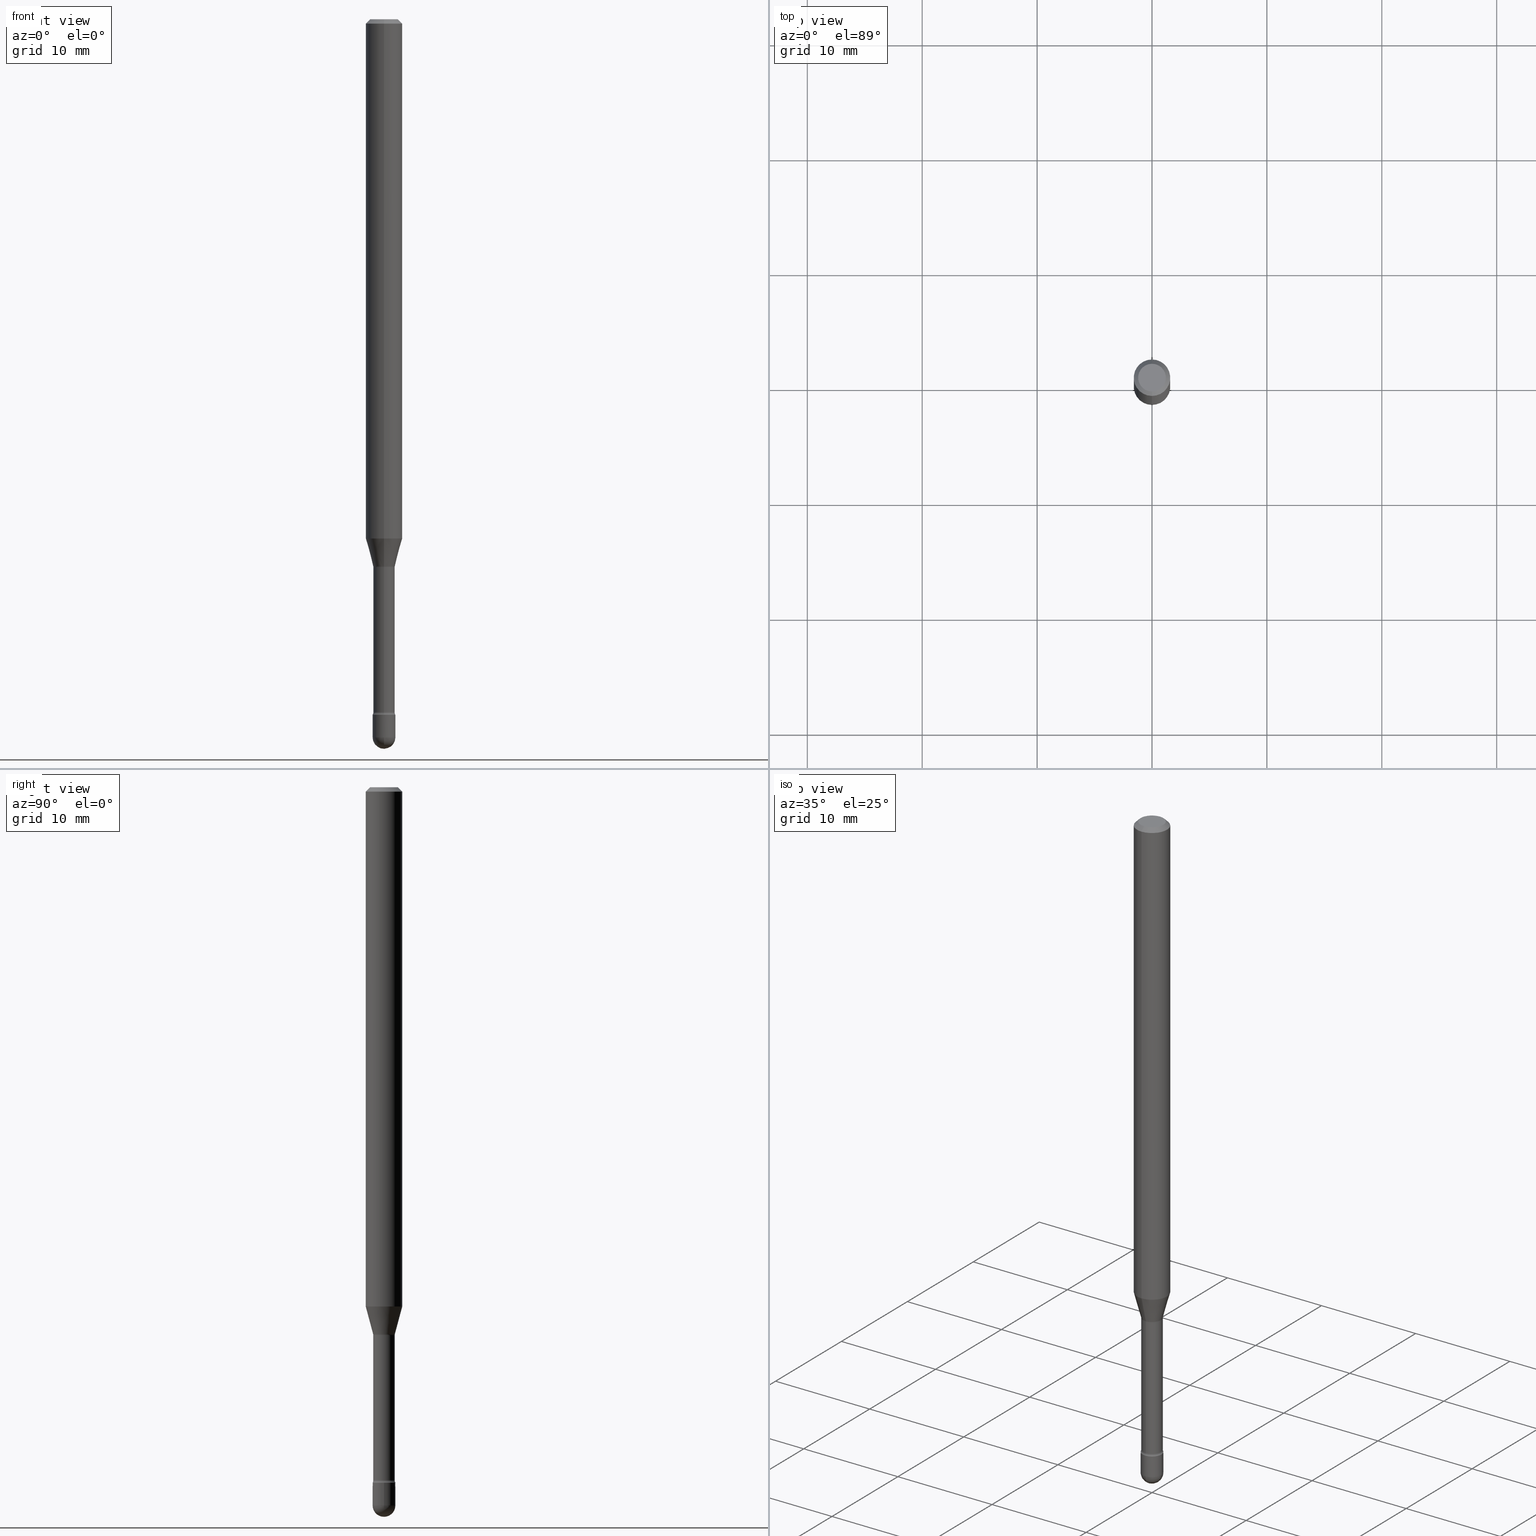
[diagram: canonical four-view strip — front | top / right | iso, engineering-drawing reading convention]
A machine part, canonical four-view strip (front | top / right | iso — engineering-drawing reading convention). The complete STEP part file that produces these views, byte-faithful:
ISO-10303-21;
HEADER;
FILE_DESCRIPTION (( 'STEP AP203' ),
    '1' );
FILE_NAME ('03876.STEP',
    '2024-04-09T20:53:55',
    ( '' ),
    ( '' ),
    'SwSTEP 2.0',
    'SolidWorks 2023',
    '' );
FILE_SCHEMA (( 'CONFIG_CONTROL_DESIGN' ));
ENDSEC;

DATA;
#1 = CIRCLE ( 'NONE', #311, 0.01500000000000001853 ) ;
#2 = CIRCLE ( 'NONE', #470, 0.04749999999999999362 ) ;
#3 = FACE_OUTER_BOUND ( 'NONE', #330, .T. ) ;
#4 = LOCAL_TIME ( 16, 53, 55.00000000000000000, #322 ) ;
#5 = FACE_OUTER_BOUND ( 'NONE', #262, .T. ) ;
#6 = PLANE ( 'NONE',  #140 ) ;
#7 = DIRECTION ( 'NONE',  ( -2.445432227505668971E-29, 3.491533721594072411E-15, 1.000000000000000000 ) ) ;
#8 = EDGE_CURVE ( 'NONE', #102, #549, #1, .T. ) ;
#9 = LINE ( 'NONE', #546, #360 ) ;
#10 = DIRECTION ( 'NONE',  ( -2.445468806185136597E-29, 3.491481338843145583E-15, 1.000000000000000000 ) ) ;
#11 = DIRECTION ( 'NONE',  ( -2.445432227505668971E-29, 3.491533721594072411E-15, 1.000000000000000000 ) ) ;
#12 = FACE_OUTER_BOUND ( 'NONE', #547, .T. ) ;
#13 = ORIENTED_EDGE ( 'NONE', *, *, #423, .T. ) ;
#14 = FACE_OUTER_BOUND ( 'NONE', #337, .T. ) ;
#15 = AXIS2_PLACEMENT_3D ( 'NONE', #545, #24, #552 ) ;
#16 = EDGE_CURVE ( 'NONE', #313, #247, #386, .T. ) ;
#17 = DIRECTION ( 'NONE',  ( -6.982962677686265922E-15, -1.000000000000000000, 0.000000000000000000 ) ) ;
#18 = ORIENTED_EDGE ( 'NONE', *, *, #180, .F. ) ;
#19 = VERTEX_POINT ( 'NONE', #241 ) ;
#20 = CARTESIAN_POINT ( 'NONE',  ( 3.668148341258523687E-31, -5.237300582391137805E-17, -0.01500000000000008271 ) ) ;
#21 = APPROVAL_DATE_TIME ( #63, #57 ) ;
#22 = VECTOR ( 'NONE', #317, 39.37007874015748143 ) ;
#23 = LOCAL_TIME ( 16, 53, 55.00000000000000000, #416 ) ;
#24 = DIRECTION ( 'NONE',  ( -1.000000000000000000, 6.982962677686265922E-15, -4.883557194083112340E-29 ) ) ;
#25 = EDGE_CURVE ( 'NONE', #143, #313, #507, .T. ) ;
#26 = DIRECTION ( 'NONE',  ( -6.982962677686267499E-15, -1.000000000000000000, 0.000000000000000000 ) ) ;
#27 = PERSON_AND_ORGANIZATION ( #292, #353 ) ;
#28 = DIRECTION ( 'NONE',  ( 1.000000000000000000, -6.982962677686282488E-15, 0.000000000000000000 ) ) ;
#29 = EDGE_LOOP ( 'NONE', ( #396, #151, #454, #400 ) ) ;
#30 = EDGE_CURVE ( 'NONE', #532, #265, #464, .T. ) ;
#31 = APPROVAL_STATUS ( 'not_yet_approved' ) ;
#32 = DIRECTION ( 'NONE',  ( -2.445468806185136597E-29, 3.491481338843145583E-15, 1.000000000000000000 ) ) ;
#33 = AXIS2_PLACEMENT_3D ( 'NONE', #459, #115, #461 ) ;
#34 = ADVANCED_FACE ( 'NONE', ( #367 ), #406, .T. ) ;
#35 = DATE_AND_TIME ( #246, #23 ) ;
#36 = PRODUCT_DEFINITION_FORMATION_WITH_SPECIFIED_SOURCE ( 'ANY', '', #273, .NOT_KNOWN. ) ;
#37 = CARTESIAN_POINT ( 'NONE',  ( 6.018298732021620914E-29, -8.592535574892981353E-15, -2.460999999999999854 ) ) ;
#38 = VERTEX_POINT ( 'NONE', #475 ) ;
#39 = ORIENTED_EDGE ( 'NONE', *, *, #267, .F. ) ;
#40 = AXIS2_PLACEMENT_3D ( 'NONE', #61, #493, #402 ) ;
#41 = PLANE ( 'NONE',  #269 ) ;
#42 = CIRCLE ( 'NONE', #369, 0.03899999999999999994 ) ;
#43 = ORIENTED_EDGE ( 'NONE', *, *, #103, .T. ) ;
#44 = CARTESIAN_POINT ( 'NONE',  ( -4.364351673553912750E-16, -0.06250000000000005551, -0.01499999999999986587 ) ) ;
#45 = VERTEX_POINT ( 'NONE', #217 ) ;
#46 = CARTESIAN_POINT ( 'NONE',  ( 0.03899999999999999994, -2.723355444297643682E-16, 1.901708942560414931E-30 ) ) ;
#47 = EDGE_CURVE ( 'NONE', #227, #247, #171, .T. ) ;
#48 = AXIS2_PLACEMENT_3D ( 'NONE', #266, #356, #17 ) ;
#49 = FACE_OUTER_BOUND ( 'NONE', #431, .T. ) ;
#50 = LOCAL_TIME ( 16, 53, 55.00000000000000000, #512 ) ;
#51 = CARTESIAN_POINT ( 'NONE',  ( 4.582966201197323306E-29, -6.543457167376863693E-15, -1.874092501787273157 ) ) ;
#52 = DIRECTION ( 'NONE',  ( -6.982962677686265922E-15, -1.000000000000000000, 3.491533721594072411E-15 ) ) ;
#53 = CARTESIAN_POINT ( 'NONE',  ( 2.604139126561350589E-16, 0.03664999999999345864, -1.877974787463811079 ) ) ;
#54 = ORIENTED_EDGE ( 'NONE', *, *, #83, .F. ) ;
#55 = DIRECTION ( 'NONE',  ( -2.445432227505668971E-29, 3.491533721594072411E-15, 1.000000000000000000 ) ) ;
#56 = CARTESIAN_POINT ( 'NONE',  ( -1.169113584055446105E-44, 1.669184350826100908E-30, 4.780733988912460139E-16 ) ) ;
#57 = APPROVAL ( #152, 'UNSPECIFIED' ) ;
#58 = ORIENTED_EDGE ( 'NONE', *, *, #155, .T. ) ;
#59 = CARTESIAN_POINT ( 'NONE',  ( -2.723355444297061897E-16, -0.03900000000000832662, -2.383000000000000451 ) ) ;
#60 = CIRCLE ( 'NONE', #560, 0.06250000000000000000 ) ;
#61 = CARTESIAN_POINT ( 'NONE',  ( 5.827464998146010036E-29, -8.320324858558674794E-15, -2.383000000000000451 ) ) ;
#62 = ADVANCED_FACE ( 'NONE', ( #5 ), #175, .T. ) ;
#63 = DATE_AND_TIME ( #237, #437 ) ;
#64 = CARTESIAN_POINT ( 'NONE',  ( 3.669953230201501814E-16, 0.05164999999999177888, -2.374939137763242059 ) ) ;
#65 = EDGE_CURVE ( 'NONE', #421, #102, #559, .T. ) ;
#66 = CARTESIAN_POINT ( 'NONE',  ( 3.840629472727447874E-16, 0.04749999999999999362, -2.485923956665947374E-16 ) ) ;
#67 = AXIS2_PLACEMENT_3D ( 'NONE', #150, #393, #489 ) ;
#68 = ORIENTED_EDGE ( 'NONE', *, *, #458, .F. ) ;
#69 = AXIS2_PLACEMENT_3D ( 'NONE', #250, #297, #425 ) ;
#70 = DIRECTION ( 'NONE',  ( 1.000000000000000000, -7.105427357601001070E-15, 4.926316150045764612E-29 ) ) ;
#71 = DIRECTION ( 'NONE',  ( -6.982962677686266711E-15, -1.000000000000000000, 0.000000000000000000 ) ) ;
#72 = EDGE_CURVE ( 'NONE', #19, #549, #328, .T. ) ;
#73 = DIRECTION ( 'NONE',  ( -2.445432227505668971E-29, 3.491533721594072411E-15, 1.000000000000000000 ) ) ;
#74 = TOROIDAL_SURFACE ( 'NONE', #221, 0.05165000000000006392, 0.01500000000000001853 ) ;
#75 =( NAMED_UNIT ( * ) SI_UNIT ( $, .STERADIAN. ) SOLID_ANGLE_UNIT ( ) );
#76 = CARTESIAN_POINT ( 'NONE',  ( 0.000000000000000000, 0.000000000000000000, 0.000000000000000000 ) ) ;
#77 = EDGE_CURVE ( 'NONE', #126, #555, #435, .T. ) ;
#78 = DIRECTION ( 'NONE',  ( -2.445432227505668971E-29, 3.491533721594072411E-15, 1.000000000000000000 ) ) ;
#79 = ORIENTED_EDGE ( 'NONE', *, *, #30, .T. ) ;
#80 = AXIS2_PLACEMENT_3D ( 'NONE', #342, #522, #443 ) ;
#81 = EDGE_LOOP ( 'NONE', ( #92, #43, #310, #184 ) ) ;
#82 = DESIGN_CONTEXT ( 'detailed design', #383, 'design' ) ;
#83 = EDGE_CURVE ( 'NONE', #405, #247, #272, .T. ) ;
#84 = CARTESIAN_POINT ( 'NONE',  ( -0.03900000000000000688, -8.179256135731659234E-15, -2.460999999999999854 ) ) ;
#85 = FACE_OUTER_BOUND ( 'NONE', #81, .T. ) ;
#86 = AXIS2_PLACEMENT_3D ( 'NONE', #298, #390, #52 ) ;
#87 = FACE_OUTER_BOUND ( 'NONE', #117, .T. ) ;
#88 = EDGE_CURVE ( 'NONE', #491, #532, #303, .T. ) ;
#89 = APPROVAL_PERSON_ORGANIZATION ( #179, #57, #448 ) ;
#90 =( LENGTH_UNIT ( ) NAMED_UNIT ( * ) SI_UNIT ( $, .METRE. ) );
#91 = EDGE_CURVE ( 'NONE', #102, #421, #97, .T. ) ;
#92 = ORIENTED_EDGE ( 'NONE', *, *, #514, .F. ) ;
#93 = CARTESIAN_POINT ( 'NONE',  ( 4.592528761544912095E-29, -6.556913925247819438E-15, -1.877974787463811079 ) ) ;
#94 = PERSON_AND_ORGANIZATION_ROLE ( 'classification_officer' ) ;
#95 = ORIENTED_EDGE ( 'NONE', *, *, #267, .T. ) ;
#96 = DATE_AND_TIME ( #492, #445 ) ;
#97 = CIRCLE ( 'NONE', #67, 0.03665000000000004365 ) ;
#98 = CIRCLE ( 'NONE', #429, 0.03716111260566398733 ) ;
#99 = DIRECTION ( 'NONE',  ( -2.445432227505668971E-29, 3.491533721594072411E-15, 1.000000000000000000 ) ) ;
#100 = ORIENTED_EDGE ( 'NONE', *, *, #91, .F. ) ;
#101 = CARTESIAN_POINT ( 'NONE',  ( 4.592460067707113754E-29, -6.557012298733358393E-15, -1.877974787463811079 ) ) ;
#102 = VERTEX_POINT ( 'NONE', #222 ) ;
#103 = EDGE_CURVE ( 'NONE', #38, #126, #182, .T. ) ;
#104 = ORIENTED_EDGE ( 'NONE', *, *, #270, .T. ) ;
#105 = DIRECTION ( 'NONE',  ( 6.982962677686265922E-15, 1.000000000000000000, -3.483106191921935554E-15 ) ) ;
#106 = DIMENSIONAL_EXPONENTS ( 1.000000000000000000, 0.000000000000000000, 0.000000000000000000, 0.000000000000000000, 0.000000000000000000, 0.000000000000000000, 0.000000000000000000 ) ;
#107 = EDGE_LOOP ( 'NONE', ( #58, #533 ) ) ;
#108 = DIRECTION ( 'NONE',  ( -6.982962677686266711E-15, -1.000000000000000000, 3.491533721594072411E-15 ) ) ;
#109 = CIRCLE ( 'NONE', #427, 0.03716111260566398733 ) ;
#110 = CC_DESIGN_SECURITY_CLASSIFICATION ( #339, ( #36 ) ) ;
#111 = EDGE_CURVE ( 'NONE', #375, #313, #302, .T. ) ;
#112 = FACE_OUTER_BOUND ( 'NONE', #430, .T. ) ;
#113 = MANIFOLD_SOLID_BREP ( 'Body-Move/Copy2[2]', #517 ) ;
#114 = PERSON_AND_ORGANIZATION ( #292, #353 ) ;
#115 = DIRECTION ( 'NONE',  ( 1.000000000000000000, -6.982962677686265922E-15, 4.883557194083112340E-29 ) ) ;
#116 = CARTESIAN_POINT ( 'NONE',  ( -4.364351673553484300E-16, -0.06250000000000624500, -1.779526486624344761 ) ) ;
#117 = EDGE_LOOP ( 'NONE', ( #215, #370, #68, #278 ) ) ;
#118 = ORIENTED_EDGE ( 'NONE', *, *, #169, .T. ) ;
#119 = CLOSED_SHELL ( 'NONE', ( #466, #190, #523, #521, #411 ) ) ;
#120 = CIRCLE ( 'NONE', #33, 0.03899999999999989586 ) ;
#121 = CARTESIAN_POINT ( 'NONE',  ( 0.000000000000000000, 0.000000000000000000, 0.000000000000000000 ) ) ;
#122 = AXIS2_PLACEMENT_3D ( 'NONE', #536, #147, #274 ) ;
#123 = ADVANCED_FACE ( 'NONE', ( #260 ), #439, .T. ) ;
#124 = PERSON_AND_ORGANIZATION ( #292, #353 ) ;
#125 = MANIFOLD_SOLID_BREP ( 'Body-Move/Copy2[1]', #119 ) ;
#126 = VERTEX_POINT ( 'NONE', #53 ) ;
#127 = DIRECTION ( 'NONE',  ( -6.982962677686266711E-15, -1.000000000000000000, 0.000000000000000000 ) ) ;
#128 = CARTESIAN_POINT ( 'NONE',  ( 2.723355444298225960E-16, 0.03899999999999167327, -2.383000000000000451 ) ) ;
#129 = EDGE_CURVE ( 'NONE', #549, #19, #469, .T. ) ;
#130 = ORIENTED_EDGE ( 'NONE', *, *, #225, .F. ) ;
#131 = AXIS2_PLACEMENT_3D ( 'NONE', #243, #198, #553 ) ;
#132 = LINE ( 'NONE', #46, #388 ) ;
#133 = CIRCLE ( 'NONE', #494, 0.03899999999999999994 ) ;
#134 = AXIS2_PLACEMENT_3D ( 'NONE', #121, #165, #234 ) ;
#135 = ADVANCED_FACE ( 'NONE', ( #200 ), #257, .T. ) ;
#136 = DIRECTION ( 'NONE',  ( -2.445468806185136597E-29, 3.491481338843145583E-15, 1.000000000000000000 ) ) ;
#137 = DIRECTION ( 'NONE',  ( -2.445432227505668691E-29, 3.491533721594072806E-15, 1.000000000000000000 ) ) ;
#138 = DIRECTION ( 'NONE',  ( 7.105427357601001859E-15, 1.000000000000000000, 0.000000000000000000 ) ) ;
#139 = ORIENTED_EDGE ( 'NONE', *, *, #514, .T. ) ;
#140 = AXIS2_PLACEMENT_3D ( 'NONE', #300, #479, #248 ) ;
#141 = DIRECTION ( 'NONE',  ( -2.445432227505668971E-29, 3.491533721594072411E-15, 1.000000000000000000 ) ) ;
#142 = CARTESIAN_POINT ( 'NONE',  ( 4.592528761544912095E-29, -6.556913925247819438E-15, -1.877974787463811079 ) ) ;
#143 = VERTEX_POINT ( 'NONE', #116 ) ;
#144 = CARTESIAN_POINT ( 'NONE',  ( 0.000000000000000000, 0.000000000000000000, 0.000000000000000000 ) ) ;
#145 = FACE_OUTER_BOUND ( 'NONE', #29, .T. ) ;
#146 = PRODUCT_DEFINITION_SHAPE ( 'NONE', 'NONE',  #535 ) ;
#147 = DIRECTION ( 'NONE',  ( -2.438088387897960049E-29, 3.491481338843145188E-15, 1.000000000000000000 ) ) ;
#148 = EDGE_LOOP ( 'NONE', ( #332, #403, #408, #516 ) ) ;
#149 = AXIS2_PLACEMENT_3D ( 'NONE', #372, #163, #283 ) ;
#150 = CARTESIAN_POINT ( 'NONE',  ( 5.807752705850756836E-29, -8.292180086233907594E-15, -2.374939137763241614 ) ) ;
#151 = ORIENTED_EDGE ( 'NONE', *, *, #277, .F. ) ;
#152 = APPROVAL_STATUS ( 'not_yet_approved' ) ;
#153 = CYLINDRICAL_SURFACE ( 'NONE', #149, 0.03665000000000002978 ) ;
#154 = CARTESIAN_POINT ( 'NONE',  ( -0.03899999999999999994, 2.771116669464390721E-16, -1.918384685199413078E-30 ) ) ;
#155 = EDGE_CURVE ( 'NONE', #227, #375, #2, .T. ) ;
#156 = CARTESIAN_POINT ( 'NONE',  ( 5.827552165139180878E-29, -8.320200030463215753E-15, -2.383000000000000451 ) ) ;
#157 = AXIS2_PLACEMENT_3D ( 'NONE', #93, #7, #474 ) ;
#158 = DIRECTION ( 'NONE',  ( -2.445432227505668691E-29, 3.491533721594072806E-15, 1.000000000000000000 ) ) ;
#159 = EDGE_LOOP ( 'NONE', ( #420, #511, #373, #290 ) ) ;
#160 = CARTESIAN_POINT ( 'NONE',  ( 4.582966201197323306E-29, -6.543457167376863693E-15, -1.874092501787273157 ) ) ;
#161 = PERSON_AND_ORGANIZATION ( #292, #353 ) ;
#162 = PERSON_AND_ORGANIZATION ( #292, #353 ) ;
#163 = DIRECTION ( 'NONE',  ( -2.445432227505668971E-29, 3.491533721594072411E-15, 1.000000000000000000 ) ) ;
#164 = DIRECTION ( 'NONE',  ( -2.445432227505668971E-29, 3.491533721594072411E-15, 1.000000000000000000 ) ) ;
#165 = DIRECTION ( 'NONE',  ( 0.000000000000000000, 0.000000000000000000, 1.000000000000000000 ) ) ;
#166 = VECTOR ( 'NONE', #137, 39.37007874015748143 ) ;
#167 = VERTEX_POINT ( 'NONE', #407 ) ;
#168 = DIRECTION ( 'NONE',  ( -6.982962677686265922E-15, -1.000000000000000000, 3.491533721594072806E-15 ) ) ;
#169 = EDGE_CURVE ( 'NONE', #491, #167, #361, .T. ) ;
#170 = ORIENTED_EDGE ( 'NONE', *, *, #8, .F. ) ;
#171 = LINE ( 'NONE', #219, #349 ) ;
#172 = EDGE_CURVE ( 'NONE', #421, #19, #502, .T. ) ;
#173 = ORIENTED_EDGE ( 'NONE', *, *, #88, .F. ) ;
#174 = AXIS2_PLACEMENT_3D ( 'NONE', #263, #480, #520 ) ;
#175 = CYLINDRICAL_SURFACE ( 'NONE', #80, 0.06250000000000000000 ) ;
#176 = LINE ( 'NONE', #259, #166 ) ;
#177 = DIRECTION ( 'NONE',  ( 1.000000000000000000, -6.982962677686282488E-15, 0.000000000000000000 ) ) ;
#178 = CYLINDRICAL_SURFACE ( 'NONE', #86, 0.03665000000000002978 ) ;
#179 = PERSON_AND_ORGANIZATION ( #292, #353 ) ;
#180 = EDGE_CURVE ( 'NONE', #265, #561, #338, .T. ) ;
#181 = CARTESIAN_POINT ( 'NONE',  ( -2.559255821371557905E-16, -0.03665000000000656621, -1.877974787463811079 ) ) ;
#182 = CIRCLE ( 'NONE', #501, 0.01500000000000001853 ) ;
#183 = AXIS2_PLACEMENT_3D ( 'NONE', #37, #410, #28 ) ;
#184 = ORIENTED_EDGE ( 'NONE', *, *, #449, .F. ) ;
#185 = TOROIDAL_SURFACE ( 'NONE', #320, 0.05165000000000000840, 0.01500000000000002373 ) ;
#186 = CARTESIAN_POINT ( 'NONE',  ( 5.807839577988232657E-29, -8.292055680388589013E-15, -2.374939137763241614 ) ) ;
#187 = EDGE_LOOP ( 'NONE', ( #54, #235, #268, #130 ) ) ;
#188 = DIRECTION ( 'NONE',  ( -6.982962677686266711E-15, -1.000000000000000000, 0.000000000000000000 ) ) ;
#189 = ORIENTED_EDGE ( 'NONE', *, *, #25, .F. ) ;
#190 = ADVANCED_FACE ( 'NONE', ( #112 ), #286, .T. ) ;
#191 = DIRECTION ( 'NONE',  ( -2.445432227505668971E-29, 3.491533721594072411E-15, 1.000000000000000000 ) ) ;
#192 = AXIS2_PLACEMENT_3D ( 'NONE', #101, #99, #264 ) ;
#193 = AXIS2_PLACEMENT_3D ( 'NONE', #488, #55, #229 ) ;
#194 = CARTESIAN_POINT ( 'NONE',  ( 2.023286869873862652E-45, -2.889304080726941620E-31, -8.274454389087630625E-17 ) ) ;
#195 = CARTESIAN_POINT ( 'NONE',  ( 0.03900000000000000688, -8.728703347107863365E-15, -2.460999999999999854 ) ) ;
#196 = ADVANCED_FACE ( 'NONE', ( #242 ), #153, .T. ) ;
#197 = CARTESIAN_POINT ( 'NONE',  ( 4.582966201197323306E-29, -6.543457167376863693E-15, -1.874092501787273157 ) ) ;
#198 = DIRECTION ( 'NONE',  ( -2.445468806185136597E-29, 3.491481338843145583E-15, 1.000000000000000000 ) ) ;
#199 = APPROVAL_DATE_TIME ( #35, #379 ) ;
#200 = FACE_OUTER_BOUND ( 'NONE', #159, .T. ) ;
#201 = AXIS2_PLACEMENT_3D ( 'NONE', #76, #136, #220 ) ;
#202 = CC_DESIGN_APPROVAL ( #57, ( #339 ) ) ;
#203 = DATE_TIME_ROLE ( 'creation_date' ) ;
#204 = DIRECTION ( 'NONE',  ( 7.105427357601001859E-15, 1.000000000000000000, 0.000000000000000000 ) ) ;
#205 = ORIENTED_EDGE ( 'NONE', *, *, #169, .F. ) ;
#206 = CALENDAR_DATE ( 2024, 9, 4 ) ;
#207 = CC_DESIGN_PERSON_AND_ORGANIZATION_ASSIGNMENT ( #27, #327, ( #535 ) ) ;
#208 = ORIENTED_EDGE ( 'NONE', *, *, #458, .T. ) ;
#209 = CARTESIAN_POINT ( 'NONE',  ( -3.606700223024380667E-16, -0.05165000000000835589, -2.374939137763241614 ) ) ;
#210 =( NAMED_UNIT ( * ) PLANE_ANGLE_UNIT ( ) SI_UNIT ( $, .RADIAN. ) );
#211 = DIRECTION ( 'NONE',  ( -6.982962677686267499E-15, -1.000000000000000000, 0.000000000000000000 ) ) ;
#212 = VECTOR ( 'NONE', #415, 39.37007874015748143 ) ;
#213 = TOROIDAL_SURFACE ( 'NONE', #157, 0.05165000000000000840, 0.01500000000000002373 ) ;
#214 = APPROVAL_PERSON_ORGANIZATION ( #419, #432, #371 ) ;
#215 = ORIENTED_EDGE ( 'NONE', *, *, #277, .T. ) ;
#216 = ADVANCED_FACE ( 'NONE', ( #240 ), #465, .T. ) ;
#217 = CARTESIAN_POINT ( 'NONE',  ( -2.594946623866024289E-16, -0.03716111260567053071, -1.874092501787273157 ) ) ;
#218 = DIRECTION ( 'NONE',  ( -2.445432227505668971E-29, 3.491533721594072411E-15, 1.000000000000000000 ) ) ;
#219 = CARTESIAN_POINT ( 'NONE',  ( 4.364351673553919652E-16, 0.06249999999999995143, -0.01500000000000030129 ) ) ;
#220 = DIRECTION ( 'NONE',  ( 1.000000000000000000, -6.982962677686265922E-15, 4.876176775795935793E-29 ) ) ;
#221 = AXIS2_PLACEMENT_3D ( 'NONE', #186, #441, #478 ) ;
#222 = CARTESIAN_POINT ( 'NONE',  ( -2.559255821371438589E-16, -0.03665000000000834257, -2.374939137763241614 ) ) ;
#223 = FACE_OUTER_BOUND ( 'NONE', #447, .T. ) ;
#224 = CARTESIAN_POINT ( 'NONE',  ( 4.440892098501057077E-16, 0.06249999999999374806, -1.779526486624345205 ) ) ;
#225 = EDGE_CURVE ( 'NONE', #247, #313, #527, .T. ) ;
#226 = CARTESIAN_POINT ( 'NONE',  ( 5.827464998146010036E-29, -8.320324858558674794E-15, -2.383000000000000451 ) ) ;
#227 = VERTEX_POINT ( 'NONE', #66 ) ;
#228 = ORIENTED_EDGE ( 'NONE', *, *, #423, .F. ) ;
#229 = DIRECTION ( 'NONE',  ( -6.982962677686265133E-15, -1.000000000000000000, 3.491533721594072411E-15 ) ) ;
#230 = CARTESIAN_POINT ( 'NONE',  ( -2.771116669463785270E-16, -0.03900000000000854866, -2.460999999999999854 ) ) ;
#231 = AXIS2_PLACEMENT_3D ( 'NONE', #56, #141, #398 ) ;
#232 = CIRCLE ( 'NONE', #183, 0.03900000000000000688 ) ;
#233 = CC_DESIGN_PERSON_AND_ORGANIZATION_ASSIGNMENT ( #531, #94, ( #339 ) ) ;
#234 = DIRECTION ( 'NONE',  ( 1.000000000000000000, 0.000000000000000000, 0.000000000000000000 ) ) ;
#235 = ORIENTED_EDGE ( 'NONE', *, *, #471, .T. ) ;
#236 = DIRECTION ( 'NONE',  ( 1.000000000000000000, -6.982962677686282488E-15, 0.000000000000000000 ) ) ;
#237 = CALENDAR_DATE ( 2024, 9, 4 ) ;
#238 = AXIS2_PLACEMENT_3D ( 'NONE', #343, #389, #211 ) ;
#239 = DIRECTION ( 'NONE',  ( -1.807323732225329350E-15, -0.2588190451025180194, 0.9659258262890689783 ) ) ;
#240 = FACE_OUTER_BOUND ( 'NONE', #524, .T. ) ;
#241 = CARTESIAN_POINT ( 'NONE',  ( 2.771116669464972999E-16, 0.03899999999999168021, -2.383000000000000451 ) ) ;
#242 = FACE_OUTER_BOUND ( 'NONE', #148, .T. ) ;
#243 = CARTESIAN_POINT ( 'NONE',  ( 6.018298732021620914E-29, -8.592535574892981353E-15, -2.460999999999999854 ) ) ;
#244 = DIRECTION ( 'NONE',  ( -2.445432227505668971E-29, 3.491533721594072411E-15, 1.000000000000000000 ) ) ;
#245 = VECTOR ( 'NONE', #239, 39.37007874015749564 ) ;
#246 = CALENDAR_DATE ( 2024, 9, 4 ) ;
#247 = VERTEX_POINT ( 'NONE', #276 ) ;
#248 = DIRECTION ( 'NONE',  ( 6.982962677686265922E-15, 1.000000000000000000, -3.491533721594072806E-15 ) ) ;
#249 = ORIENTED_EDGE ( 'NONE', *, *, #341, .T. ) ;
#250 = CARTESIAN_POINT ( 'NONE',  ( 4.351711420091109402E-29, -6.213276736518723353E-15, -1.779526486624344983 ) ) ;
#251 = EDGE_CURVE ( 'NONE', #45, #143, #453, .T. ) ;
#252 = VECTOR ( 'NONE', #483, 39.37007874015748143 ) ;
#253 = ORIENTED_EDGE ( 'NONE', *, *, #368, .F. ) ;
#254 = APPLICATION_CONTEXT ( 'configuration controlled 3d designs of mechanical parts and assemblies' ) ;
#255 = CYLINDRICAL_SURFACE ( 'NONE', #201, 0.03899999999999999994 ) ;
#256 = CARTESIAN_POINT ( 'NONE',  ( 6.115339589726742112E-29, -8.726315285849528478E-15, -2.500000000000000000 ) ) ;
#257 = CONICAL_SURFACE ( 'NONE', #550, 0.06250000000000000000, 0.7853981633974483900 ) ;
#258 = CC_DESIGN_DATE_AND_TIME_ASSIGNMENT ( #96, #481, ( #339 ) ) ;
#259 = CARTESIAN_POINT ( 'NONE',  ( -2.559255821372018402E-16, -0.03665000000000002978, 6.060381097876689444E-16 ) ) ;
#260 = FACE_OUTER_BOUND ( 'NONE', #187, .T. ) ;
#261 = DIRECTION ( 'NONE',  ( -6.982962677686265922E-15, -1.000000000000000000, 3.491533721594072411E-15 ) ) ;
#262 = EDGE_LOOP ( 'NONE', ( #208, #318, #468, #189 ) ) ;
#263 = CARTESIAN_POINT ( 'NONE',  ( 6.018298732021622035E-29, -8.592535574892982931E-15, -2.461000000000000298 ) ) ;
#264 = DIRECTION ( 'NONE',  ( -6.982962677686266711E-15, -1.000000000000000000, 0.000000000000000000 ) ) ;
#265 = VERTEX_POINT ( 'NONE', #195 ) ;
#266 = CARTESIAN_POINT ( 'NONE',  ( 5.807752705850756836E-29, -8.292180086233907594E-15, -2.374939137763241614 ) ) ;
#267 = EDGE_CURVE ( 'NONE', #354, #561, #120, .T. ) ;
#268 = ORIENTED_EDGE ( 'NONE', *, *, #25, .T. ) ;
#269 = AXIS2_PLACEMENT_3D ( 'NONE', #128, #477, #168 ) ;
#270 = EDGE_CURVE ( 'NONE', #561, #491, #232, .T. ) ;
#271 = ORIENTED_EDGE ( 'NONE', *, *, #47, .F. ) ;
#272 = LINE ( 'NONE', #451, #482 ) ;
#273 = PRODUCT ( '03876', '03876', '', ( #287 ) ) ;
#274 = DIRECTION ( 'NONE',  ( 1.000000000000000000, -6.982962677686265922E-15, 4.876176775795935793E-29 ) ) ;
#275 = ORIENTED_EDGE ( 'NONE', *, *, #65, .T. ) ;
#276 = CARTESIAN_POINT ( 'NONE',  ( 4.440892098501062993E-16, 0.06249999999999995143, -0.01500000000000030129 ) ) ;
#277 = EDGE_CURVE ( 'NONE', #45, #38, #98, .T. ) ;
#278 = ORIENTED_EDGE ( 'NONE', *, *, #251, .F. ) ;
#279 = TOROIDAL_SURFACE ( 'NONE', #193, 0.05165000000000006392, 0.01500000000000001853 ) ;
#280 = CARTESIAN_POINT ( 'NONE',  ( -2.594946623866024289E-16, -0.03716111260567053071, -1.874092501787273157 ) ) ;
#281 = EDGE_CURVE ( 'NONE', #167, #509, #42, .T. ) ;
#282 =( CONVERSION_BASED_UNIT ( 'INCH', #374 ) LENGTH_UNIT ( ) NAMED_UNIT ( #106 ) );
#283 = DIRECTION ( 'NONE',  ( -6.982962677686265922E-15, -1.000000000000000000, 3.491533721594072411E-15 ) ) ;
#284 = ORIENTED_EDGE ( 'NONE', *, *, #299, .F. ) ;
#285 = APPLICATION_PROTOCOL_DEFINITION ( 'international standard', 'config_control_design', 1994, #383 ) ;
#286 = SPHERICAL_SURFACE ( 'NONE', #15, 0.03899999999999989586 ) ;
#287 = MECHANICAL_CONTEXT ( 'NONE', #254, 'mechanical' ) ;
#288 = AXIS2_PLACEMENT_3D ( 'NONE', #160, #325, #127 ) ;
#289 = CIRCLE ( 'NONE', #378, 0.03665000000000000896 ) ;
#290 = ORIENTED_EDGE ( 'NONE', *, *, #225, .T. ) ;
#291 = ORIENTED_EDGE ( 'NONE', *, *, #16, .T. ) ;
#292 = PERSON ( 'UNSPECIFIED', 'UNSPECIFIED', 'UNSPECIFIED', ('UNSPECIFIED'), ('UNSPECIFIED'), ('UNSPECIFIED') ) ;
#293 = EDGE_CURVE ( 'NONE', #555, #126, #289, .T. ) ;
#294 = ORIENTED_EDGE ( 'NONE', *, *, #77, .F. ) ;
#295 = CARTESIAN_POINT ( 'NONE',  ( 0.03899999999999999994, -8.592535574892981353E-15, -2.383000000000000451 ) ) ;
#296 = CONICAL_SURFACE ( 'NONE', #329, 0.03716111260566398733, 0.2617993877991501850 ) ;
#297 = DIRECTION ( 'NONE',  ( -2.445432227505668971E-29, 3.491533721594072411E-15, 1.000000000000000000 ) ) ;
#298 = CARTESIAN_POINT ( 'NONE',  ( -1.169113584055446105E-44, 1.669184350826100908E-30, 4.780733988912460139E-16 ) ) ;
#299 = EDGE_CURVE ( 'NONE', #38, #405, #340, .T. ) ;
#300 = CARTESIAN_POINT ( 'NONE',  ( 3.316907271900976096E-16, 0.04749999999999999362, 3.181657572446640420E-17 ) ) ;
#301 = CARTESIAN_POINT ( 'NONE',  ( 4.582966201197323306E-29, -6.543457167376863693E-15, -1.874092501787273157 ) ) ;
#302 = LINE ( 'NONE', #348, #252 ) ;
#303 = CIRCLE ( 'NONE', #426, 0.03900000000000000688 ) ;
#304 = AXIS2_PLACEMENT_3D ( 'NONE', #226, #11, #306 ) ;
#305 = CARTESIAN_POINT ( 'NONE',  ( 2.687627898013162533E-16, 0.03664999999999175168, -2.374939137763241614 ) ) ;
#306 = DIRECTION ( 'NONE',  ( -6.982962677686264344E-15, -1.000000000000000000, 0.000000000000000000 ) ) ;
#307 = EDGE_CURVE ( 'NONE', #375, #227, #436, .T. ) ;
#308 = COORDINATED_UNIVERSAL_TIME_OFFSET ( 5, 0, .BEHIND. ) ;
#309 = EDGE_LOOP ( 'NONE', ( #205, #452, #79, #13, #381 ) ) ;
#310 = ORIENTED_EDGE ( 'NONE', *, *, #77, .T. ) ;
#311 = AXIS2_PLACEMENT_3D ( 'NONE', #209, #542, #26 ) ;
#312 = AXIS2_PLACEMENT_3D ( 'NONE', #64, #70, #204 ) ;
#313 = VERTEX_POINT ( 'NONE', #44 ) ;
#314 = COORDINATED_UNIVERSAL_TIME_OFFSET ( 5, 0, .BEHIND. ) ;
#315 = CARTESIAN_POINT ( 'NONE',  ( 3.668148341258523687E-31, -5.237300582391137805E-17, -0.01500000000000008271 ) ) ;
#316 = ADVANCED_FACE ( 'NONE', ( #3 ), #279, .F. ) ;
#317 = DIRECTION ( 'NONE',  ( -2.445468806185136877E-29, 3.491481338843145188E-15, 1.000000000000000000 ) ) ;
#318 = ORIENTED_EDGE ( 'NONE', *, *, #83, .T. ) ;
#319 = CIRCLE ( 'NONE', #238, 0.01500000000000001853 ) ;
#320 = AXIS2_PLACEMENT_3D ( 'NONE', #142, #191, #261 ) ;
#321 = DIRECTION ( 'NONE',  ( 1.000000000000000000, -6.982962677686258033E-15, 0.000000000000000000 ) ) ;
#322 = COORDINATED_UNIVERSAL_TIME_OFFSET ( 5, 0, .BEHIND. ) ;
#323 = CC_DESIGN_PERSON_AND_ORGANIZATION_ASSIGNMENT ( #124, #333, ( #36 ) ) ;
#324 = CARTESIAN_POINT ( 'NONE',  ( 3.668148341258523687E-31, -5.237300582391137805E-17, -0.01500000000000008271 ) ) ;
#325 = DIRECTION ( 'NONE',  ( -2.445432227505668971E-29, 3.491533721594072411E-15, 1.000000000000000000 ) ) ;
#326 = ORIENTED_EDGE ( 'NONE', *, *, #368, .T. ) ;
#327 = PERSON_AND_ORGANIZATION_ROLE ( 'creator' ) ;
#328 = CIRCLE ( 'NONE', #40, 0.03899999999999999994 ) ;
#329 = AXIS2_PLACEMENT_3D ( 'NONE', #301, #434, #344 ) ;
#330 = EDGE_LOOP ( 'NONE', ( #563, #500, #565, #170 ) ) ;
#331 = APPROVAL_DATE_TIME ( #557, #432 ) ;
#332 = ORIENTED_EDGE ( 'NONE', *, *, #91, .T. ) ;
#333 = PERSON_AND_ORGANIZATION_ROLE ( 'creator' ) ;
#334 = CARTESIAN_POINT ( 'NONE',  ( 2.023286869873862652E-45, -2.889304080726941620E-31, -8.274454389087630625E-17 ) ) ;
#335 = ORIENTED_EDGE ( 'NONE', *, *, #562, .F. ) ;
#336 = DIRECTION ( 'NONE',  ( -2.445468806185136877E-29, 3.491481338843145188E-15, 1.000000000000000000 ) ) ;
#337 = EDGE_LOOP ( 'NONE', ( #335, #275, #424, #294 ) ) ;
#338 = CIRCLE ( 'NONE', #359, 0.03900000000000000688 ) ;
#339 = SECURITY_CLASSIFICATION ( '', '', #490 ) ;
#340 = LINE ( 'NONE', #377, #417 ) ;
#341 = EDGE_CURVE ( 'NONE', #354, #532, #352, .T. ) ;
#342 = CARTESIAN_POINT ( 'NONE',  ( -1.169113584055446105E-44, 1.669184350826100908E-30, 4.780733988912460139E-16 ) ) ;
#343 = CARTESIAN_POINT ( 'NONE',  ( -3.606700223024497517E-16, -0.05165000000000656566, -1.877974787463810857 ) ) ;
#344 = DIRECTION ( 'NONE',  ( -6.982962677686266711E-15, -1.000000000000000000, 0.000000000000000000 ) ) ;
#345 = DIRECTION ( 'NONE',  ( 1.000000000000000000, -7.105427357601001070E-15, 4.926316150045764612E-29 ) ) ;
#346 = ADVANCED_FACE ( 'NONE', ( #87 ), #296, .T. ) ;
#347 = DIRECTION ( 'NONE',  ( 1.000000000000000000, -6.982962677686265922E-15, 4.876176775795935793E-29 ) ) ;
#348 = CARTESIAN_POINT ( 'NONE',  ( -4.287811248607203282E-16, -0.06250000000000005551, -0.01499999999999986587 ) ) ;
#349 = VECTOR ( 'NONE', #387, 39.37007874015748143 ) ;
#350 = EDGE_CURVE ( 'NONE', #102, #555, #176, .T. ) ;
#351 = DIRECTION ( 'NONE',  ( 6.982962677686265922E-15, 1.000000000000000000, 0.000000000000000000 ) ) ;
#352 = CIRCLE ( 'NONE', #174, 0.03899999999999989586 ) ;
#353 = ORGANIZATION ( 'UNSPECIFIED', 'UNSPECIFIED', '' ) ;
#354 = VERTEX_POINT ( 'NONE', #256 ) ;
#355 = FACE_OUTER_BOUND ( 'NONE', #309, .T. ) ;
#356 = DIRECTION ( 'NONE',  ( -2.445432227505668971E-29, 3.491533721594072411E-15, 1.000000000000000000 ) ) ;
#357 = SPHERICAL_SURFACE ( 'NONE', #472, 0.03899999999999989586 ) ;
#358 = ORIENTED_EDGE ( 'NONE', *, *, #129, .F. ) ;
#359 = AXIS2_PLACEMENT_3D ( 'NONE', #506, #541, #236 ) ;
#360 = VECTOR ( 'NONE', #158, 39.37007874015748143 ) ;
#361 = LINE ( 'NONE', #154, #22 ) ;
#362 = CC_DESIGN_PERSON_AND_ORGANIZATION_ASSIGNMENT ( #161, #394, ( #36 ) ) ;
#363 = EDGE_LOOP ( 'NONE', ( #358, #409 ) ) ;
#364 = ORIENTED_EDGE ( 'NONE', *, *, #307, .F. ) ;
#365 = ADVANCED_BREP_SHAPE_REPRESENTATION ( '03876', ( #125, #113, #134 ), #503 ) ;
#366 = DIRECTION ( 'NONE',  ( -2.445432227505668971E-29, 3.491533721594072411E-15, 1.000000000000000000 ) ) ;
#367 = FACE_OUTER_BOUND ( 'NONE', #496, .T. ) ;
#368 = EDGE_CURVE ( 'NONE', #509, #167, #133, .T. ) ;
#369 = AXIS2_PLACEMENT_3D ( 'NONE', #156, #32, #321 ) ;
#370 = ORIENTED_EDGE ( 'NONE', *, *, #299, .T. ) ;
#371 = APPROVAL_ROLE ( '' ) ;
#372 = CARTESIAN_POINT ( 'NONE',  ( -1.169113584055446105E-44, 1.669184350826100908E-30, 4.780733988912460139E-16 ) ) ;
#373 = ORIENTED_EDGE ( 'NONE', *, *, #47, .T. ) ;
#374 = LENGTH_MEASURE_WITH_UNIT ( LENGTH_MEASURE( 0.02539999999999999897 ), #90 );
#375 = VERTEX_POINT ( 'NONE', #438 ) ;
#376 = APPROVAL_STATUS ( 'not_yet_approved' ) ;
#377 = CARTESIAN_POINT ( 'NONE',  ( 2.640455861472221497E-16, 0.03716111260565744395, -1.874092501787273157 ) ) ;
#378 = AXIS2_PLACEMENT_3D ( 'NONE', #413, #462, #385 ) ;
#379 = APPROVAL ( #31, 'UNSPECIFIED' ) ;
#380 = ADVANCED_FACE ( 'NONE', ( #49 ), #74, .F. ) ;
#381 = ORIENTED_EDGE ( 'NONE', *, *, #281, .F. ) ;
#382 = ORIENTED_EDGE ( 'NONE', *, *, #172, .F. ) ;
#383 = APPLICATION_CONTEXT ( 'configuration controlled 3d designs of mechanical parts and assemblies' ) ;
#384 = FACE_OUTER_BOUND ( 'NONE', #450, .T. ) ;
#385 = DIRECTION ( 'NONE',  ( -6.982962677686266711E-15, -1.000000000000000000, 0.000000000000000000 ) ) ;
#386 = CIRCLE ( 'NONE', #455, 0.06250000000000000000 ) ;
#387 = DIRECTION ( 'NONE',  ( 4.937700262164548042E-15, 0.7071067811865451302, -0.7071067811865499042 ) ) ;
#388 = VECTOR ( 'NONE', #336, 39.37007874015748143 ) ;
#389 = DIRECTION ( 'NONE',  ( -1.000000000000000000, 6.982962677686265922E-15, -4.883557194083112340E-29 ) ) ;
#390 = DIRECTION ( 'NONE',  ( -2.445432227505668971E-29, 3.491533721594072411E-15, 1.000000000000000000 ) ) ;
#391 = PLANE ( 'NONE',  #122 ) ;
#392 = DIRECTION ( 'NONE',  ( -2.445468806185136597E-29, 3.491481338843145583E-15, 1.000000000000000000 ) ) ;
#393 = DIRECTION ( 'NONE',  ( -2.445432227505668971E-29, 3.491533721594072411E-15, 1.000000000000000000 ) ) ;
#394 = PERSON_AND_ORGANIZATION_ROLE ( 'design_supplier' ) ;
#395 = DIRECTION ( 'NONE',  ( -2.445432227505668971E-29, 3.491533721594072411E-15, 1.000000000000000000 ) ) ;
#396 = ORIENTED_EDGE ( 'NONE', *, *, #103, .F. ) ;
#397 = CARTESIAN_POINT ( 'NONE',  ( 5.827552165139180878E-29, -8.320200030463215753E-15, -2.383000000000000451 ) ) ;
#398 = DIRECTION ( 'NONE',  ( -6.982962677686265922E-15, -1.000000000000000000, 3.491533721594072411E-15 ) ) ;
#399 = AXIS2_PLACEMENT_3D ( 'NONE', #334, #78, #515 ) ;
#400 = ORIENTED_EDGE ( 'NONE', *, *, #293, .T. ) ;
#401 = PERSON_AND_ORGANIZATION_ROLE ( 'design_owner' ) ;
#402 = DIRECTION ( 'NONE',  ( -6.982962677686264344E-15, -1.000000000000000000, 0.000000000000000000 ) ) ;
#403 = ORIENTED_EDGE ( 'NONE', *, *, #562, .T. ) ;
#404 = ADVANCED_FACE ( 'NONE', ( #14 ), #178, .T. ) ;
#405 = VERTEX_POINT ( 'NONE', #224 ) ;
#406 = CONICAL_SURFACE ( 'NONE', #288, 0.03716111260566398733, 0.2617993877991501850 ) ;
#407 = CARTESIAN_POINT ( 'NONE',  ( -0.03899999999999999994, -8.179256135731659234E-15, -2.383000000000000451 ) ) ;
#408 = ORIENTED_EDGE ( 'NONE', *, *, #293, .F. ) ;
#409 = ORIENTED_EDGE ( 'NONE', *, *, #72, .F. ) ;
#410 = DIRECTION ( 'NONE',  ( -2.445468806185136597E-29, 3.491481338843145583E-15, 1.000000000000000000 ) ) ;
#411 = ADVANCED_FACE ( 'NONE', ( #355 ), #530, .T. ) ;
#412 = CARTESIAN_POINT ( 'NONE',  ( -4.364351673553916201E-16, -0.06250000000000000000, 6.962942564908755643E-16 ) ) ;
#413 = CARTESIAN_POINT ( 'NONE',  ( 4.592460067707113754E-29, -6.557012298733358393E-15, -1.877974787463811079 ) ) ;
#414 = ADVANCED_FACE ( 'NONE', ( #85 ), #213, .F. ) ;
#415 = DIRECTION ( 'NONE',  ( -2.445432227505668691E-29, 3.491533721594072806E-15, 1.000000000000000000 ) ) ;
#416 = COORDINATED_UNIVERSAL_TIME_OFFSET ( 5, 0, .BEHIND. ) ;
#417 = VECTOR ( 'NONE', #428, 39.37007874015748143 ) ;
#418 = DIRECTION ( 'NONE',  ( -6.982962677686265922E-15, -1.000000000000000000, 3.483106191921935554E-15 ) ) ;
#419 = PERSON_AND_ORGANIZATION ( #292, #353 ) ;
#420 = ORIENTED_EDGE ( 'NONE', *, *, #111, .F. ) ;
#421 = VERTEX_POINT ( 'NONE', #305 ) ;
#422 = DATE_AND_TIME ( #467, #4 ) ;
#423 = EDGE_CURVE ( 'NONE', #265, #509, #132, .T. ) ;
#424 = ORIENTED_EDGE ( 'NONE', *, *, #350, .T. ) ;
#425 = DIRECTION ( 'NONE',  ( -6.982962677686265922E-15, -1.000000000000000000, 4.370956789862821150E-15 ) ) ;
#426 = AXIS2_PLACEMENT_3D ( 'NONE', #446, #538, #177 ) ;
#427 = AXIS2_PLACEMENT_3D ( 'NONE', #51, #395, #188 ) ;
#428 = DIRECTION ( 'NONE',  ( 1.839019923739599526E-15, 0.2588190451025248473, 0.9659258262890670910 ) ) ;
#429 = AXIS2_PLACEMENT_3D ( 'NONE', #197, #366, #71 ) ;
#430 = EDGE_LOOP ( 'NONE', ( #39, #249, #173, #537 ) ) ;
#431 = EDGE_LOOP ( 'NONE', ( #382, #100, #505, #539 ) ) ;
#432 = APPROVAL ( #376, 'UNSPECIFIED' ) ;
#433 = FACE_OUTER_BOUND ( 'NONE', #107, .T. ) ;
#434 = DIRECTION ( 'NONE',  ( -2.445432227505668971E-29, 3.491533721594072411E-15, 1.000000000000000000 ) ) ;
#435 = CIRCLE ( 'NONE', #192, 0.03665000000000000896 ) ;
#436 = CIRCLE ( 'NONE', #399, 0.04749999999999999362 ) ;
#437 = LOCAL_TIME ( 16, 53, 55.00000000000000000, #314 ) ;
#438 = CARTESIAN_POINT ( 'NONE',  ( -3.773273898774340269E-16, -0.04749999999999999362, 8.310330788484211257E-17 ) ) ;
#439 = CYLINDRICAL_SURFACE ( 'NONE', #231, 0.06250000000000000000 ) ;
#440 = ORIENTED_EDGE ( 'NONE', *, *, #30, .F. ) ;
#441 = DIRECTION ( 'NONE',  ( -2.445432227505668971E-29, 3.491533721594072411E-15, 1.000000000000000000 ) ) ;
#442 = CARTESIAN_POINT ( 'NONE',  ( 3.669953230201376583E-16, 0.05164999999999345115, -1.877974787463811523 ) ) ;
#443 = DIRECTION ( 'NONE',  ( -6.982962677686265922E-15, -1.000000000000000000, 3.491533721594072411E-15 ) ) ;
#444 = ORIENTED_EDGE ( 'NONE', *, *, #471, .F. ) ;
#445 = LOCAL_TIME ( 16, 53, 55.00000000000000000, #308 ) ;
#446 = CARTESIAN_POINT ( 'NONE',  ( 6.018298732021620914E-29, -8.592535574892981353E-15, -2.460999999999999854 ) ) ;
#447 = EDGE_LOOP ( 'NONE', ( #326, #499 ) ) ;
#448 = APPROVAL_ROLE ( '' ) ;
#449 = EDGE_CURVE ( 'NONE', #45, #555, #319, .T. ) ;
#450 = EDGE_LOOP ( 'NONE', ( #104, #118, #253, #228, #556 ) ) ;
#451 = CARTESIAN_POINT ( 'NONE',  ( 4.440892098500625669E-16, 0.06250000000000000000, 2.598525412916165622E-16 ) ) ;
#452 = ORIENTED_EDGE ( 'NONE', *, *, #88, .T. ) ;
#453 = LINE ( 'NONE', #280, #245 ) ;
#454 = ORIENTED_EDGE ( 'NONE', *, *, #449, .T. ) ;
#455 = AXIS2_PLACEMENT_3D ( 'NONE', #543, #164, #460 ) ;
#456 = AXIS2_PLACEMENT_3D ( 'NONE', #315, #498, #105 ) ;
#457 = APPROVAL_PERSON_ORGANIZATION ( #162, #379, #463 ) ;
#458 = EDGE_CURVE ( 'NONE', #143, #405, #60, .T. ) ;
#459 = CARTESIAN_POINT ( 'NONE',  ( 6.018298732021622035E-29, -8.592535574892982931E-15, -2.461000000000000298 ) ) ;
#460 = DIRECTION ( 'NONE',  ( -6.982962677686265922E-15, -1.000000000000000000, 3.483106191921935554E-15 ) ) ;
#461 = DIRECTION ( 'NONE',  ( 6.982962677686265922E-15, 1.000000000000000000, 0.000000000000000000 ) ) ;
#462 = DIRECTION ( 'NONE',  ( -2.445432227505668971E-29, 3.491533721594072411E-15, 1.000000000000000000 ) ) ;
#463 = APPROVAL_ROLE ( '' ) ;
#464 = CIRCLE ( 'NONE', #131, 0.03900000000000000688 ) ;
#465 = CONICAL_SURFACE ( 'NONE', #456, 0.06250000000000000000, 0.7853981633974483900 ) ;
#466 = ADVANCED_FACE ( 'NONE', ( #384 ), #255, .T. ) ;
#467 = CALENDAR_DATE ( 2024, 9, 4 ) ;
#468 = ORIENTED_EDGE ( 'NONE', *, *, #16, .F. ) ;
#469 = CIRCLE ( 'NONE', #304, 0.03899999999999999994 ) ;
#470 = AXIS2_PLACEMENT_3D ( 'NONE', #194, #73, #108 ) ;
#471 = EDGE_CURVE ( 'NONE', #405, #143, #518, .T. ) ;
#472 = AXIS2_PLACEMENT_3D ( 'NONE', #534, #529, #351 ) ;
#473 = ORIENTED_EDGE ( 'NONE', *, *, #341, .F. ) ;
#474 = DIRECTION ( 'NONE',  ( -6.982962677686265922E-15, -1.000000000000000000, 3.491533721594072411E-15 ) ) ;
#475 = CARTESIAN_POINT ( 'NONE',  ( 3.540673979986641999E-16, 0.03716111260565744395, -1.874092501787273157 ) ) ;
#476 = UNCERTAINTY_MEASURE_WITH_UNIT (LENGTH_MEASURE( 1.000000000000000082E-05 ), #282, 'distance_accuracy_value', 'NONE');
#477 = DIRECTION ( 'NONE',  ( -2.445432227505668410E-29, 3.491533721594072806E-15, 1.000000000000000000 ) ) ;
#478 = DIRECTION ( 'NONE',  ( -6.982962677686265133E-15, -1.000000000000000000, 3.491533721594072411E-15 ) ) ;
#479 = DIRECTION ( 'NONE',  ( 2.445432227505668410E-29, -3.491533721594072806E-15, -1.000000000000000000 ) ) ;
#480 = DIRECTION ( 'NONE',  ( -1.000000000000000000, 7.105427357601001070E-15, -4.926315508542082329E-29 ) ) ;
#481 = DATE_TIME_ROLE ( 'classification_date' ) ;
#482 = VECTOR ( 'NONE', #526, 39.37007874015748143 ) ;
#483 = DIRECTION ( 'NONE',  ( -4.851104656540964275E-15, -0.7071067811865500152, -0.7071067811865450192 ) ) ;
#484 = AXIS2_PLACEMENT_3D ( 'NONE', #144, #392, #347 ) ;
#485 = CARTESIAN_POINT ( 'NONE',  ( 2.723355444298241737E-16, 0.03899999999999136102, -2.460999999999999854 ) ) ;
#486 = ADVANCED_FACE ( 'NONE', ( #566 ), #41, .F. ) ;
#487 = ORIENTED_EDGE ( 'NONE', *, *, #251, .T. ) ;
#488 = CARTESIAN_POINT ( 'NONE',  ( 5.807839577988232657E-29, -8.292055680388589013E-15, -2.374939137763241614 ) ) ;
#489 = DIRECTION ( 'NONE',  ( -6.982962677686265922E-15, -1.000000000000000000, 0.000000000000000000 ) ) ;
#490 = SECURITY_CLASSIFICATION_LEVEL ( 'unclassified' ) ;
#491 = VERTEX_POINT ( 'NONE', #84 ) ;
#492 = CALENDAR_DATE ( 2024, 9, 4 ) ;
#493 = DIRECTION ( 'NONE',  ( -2.445432227505668971E-29, 3.491533721594072411E-15, 1.000000000000000000 ) ) ;
#494 = AXIS2_PLACEMENT_3D ( 'NONE', #397, #10, #525 ) ;
#495 = DIRECTION ( 'NONE',  ( 6.982962677686265922E-15, 1.000000000000000000, -3.483106191921935554E-15 ) ) ;
#496 = EDGE_LOOP ( 'NONE', ( #284, #139, #487, #444 ) ) ;
#497 = CC_DESIGN_PERSON_AND_ORGANIZATION_ASSIGNMENT ( #114, #401, ( #273 ) ) ;
#498 = DIRECTION ( 'NONE',  ( 2.445432227505668971E-29, -3.491533721594072411E-15, -1.000000000000000000 ) ) ;
#499 = ORIENTED_EDGE ( 'NONE', *, *, #281, .T. ) ;
#500 = ORIENTED_EDGE ( 'NONE', *, *, #172, .T. ) ;
#501 = AXIS2_PLACEMENT_3D ( 'NONE', #442, #345, #138 ) ;
#502 = CIRCLE ( 'NONE', #312, 0.01500000000000001853 ) ;
#503 =( GEOMETRIC_REPRESENTATION_CONTEXT ( 3 ) GLOBAL_UNCERTAINTY_ASSIGNED_CONTEXT ( ( #476 ) ) GLOBAL_UNIT_ASSIGNED_CONTEXT ( ( #282, #210, #75 ) ) REPRESENTATION_CONTEXT ( 'NONE', 'WORKASPACE' ) );
#504 = DIRECTION ( 'NONE',  ( 2.445432227505668971E-29, -3.491533721594072411E-15, -1.000000000000000000 ) ) ;
#505 = ORIENTED_EDGE ( 'NONE', *, *, #8, .T. ) ;
#506 = CARTESIAN_POINT ( 'NONE',  ( 6.018298732021620914E-29, -8.592535574892981353E-15, -2.460999999999999854 ) ) ;
#507 = LINE ( 'NONE', #412, #212 ) ;
#508 = ADVANCED_FACE ( 'NONE', ( #433 ), #6, .F. ) ;
#509 = VERTEX_POINT ( 'NONE', #295 ) ;
#510 = CC_DESIGN_APPROVAL ( #432, ( #36 ) ) ;
#511 = ORIENTED_EDGE ( 'NONE', *, *, #155, .F. ) ;
#512 = COORDINATED_UNIVERSAL_TIME_OFFSET ( 5, 0, .BEHIND. ) ;
#513 = ORIENTED_EDGE ( 'NONE', *, *, #111, .T. ) ;
#514 = EDGE_CURVE ( 'NONE', #38, #45, #109, .T. ) ;
#515 = DIRECTION ( 'NONE',  ( -6.982962677686266711E-15, -1.000000000000000000, 3.491533721594072411E-15 ) ) ;
#516 = ORIENTED_EDGE ( 'NONE', *, *, #350, .F. ) ;
#517 = CLOSED_SHELL ( 'NONE', ( #414, #196, #316, #216, #62, #346, #34, #123, #135, #508, #486, #380, #404, #558 ) ) ;
#518 = CIRCLE ( 'NONE', #69, 0.06250000000000000000 ) ;
#519 = DIRECTION ( 'NONE',  ( -6.982962677686265922E-15, -1.000000000000000000, 4.370956789862821150E-15 ) ) ;
#520 = DIRECTION ( 'NONE',  ( -7.105427357601000281E-15, -1.000000000000000000, 0.000000000000000000 ) ) ;
#521 = ADVANCED_FACE ( 'NONE', ( #12 ), #357, .T. ) ;
#522 = DIRECTION ( 'NONE',  ( -2.445432227505668971E-29, 3.491533721594072411E-15, 1.000000000000000000 ) ) ;
#523 = ADVANCED_FACE ( 'NONE', ( #223 ), #391, .T. ) ;
#524 = EDGE_LOOP ( 'NONE', ( #364, #513, #291, #271 ) ) ;
#525 = DIRECTION ( 'NONE',  ( 1.000000000000000000, -6.982962677686258033E-15, 0.000000000000000000 ) ) ;
#526 = DIRECTION ( 'NONE',  ( -2.445432227505668691E-29, 3.491533721594072806E-15, 1.000000000000000000 ) ) ;
#527 = CIRCLE ( 'NONE', #540, 0.06250000000000000000 ) ;
#528 = CC_DESIGN_APPROVAL ( #379, ( #535 ) ) ;
#529 = DIRECTION ( 'NONE',  ( -1.000000000000000000, 6.982962677686265922E-15, -4.883557194083112340E-29 ) ) ;
#530 = CYLINDRICAL_SURFACE ( 'NONE', #484, 0.03899999999999999994 ) ;
#531 = PERSON_AND_ORGANIZATION ( #292, #353 ) ;
#532 = VERTEX_POINT ( 'NONE', #230 ) ;
#533 = ORIENTED_EDGE ( 'NONE', *, *, #307, .T. ) ;
#534 = CARTESIAN_POINT ( 'NONE',  ( 6.018298732021622035E-29, -8.592535574892982931E-15, -2.461000000000000298 ) ) ;
#535 = PRODUCT_DEFINITION ( 'UNKNOWN', '', #36, #82 ) ;
#536 = CARTESIAN_POINT ( 'NONE',  ( 5.827552165139180878E-29, -8.320200030463215753E-15, -2.383000000000000451 ) ) ;
#537 = ORIENTED_EDGE ( 'NONE', *, *, #270, .F. ) ;
#538 = DIRECTION ( 'NONE',  ( -2.445468806185136597E-29, 3.491481338843145583E-15, 1.000000000000000000 ) ) ;
#539 = ORIENTED_EDGE ( 'NONE', *, *, #129, .T. ) ;
#540 = AXIS2_PLACEMENT_3D ( 'NONE', #324, #244, #418 ) ;
#541 = DIRECTION ( 'NONE',  ( -2.445468806185136597E-29, 3.491481338843145583E-15, 1.000000000000000000 ) ) ;
#542 = DIRECTION ( 'NONE',  ( -1.000000000000000000, 6.982962677686265922E-15, -4.883557194083112340E-29 ) ) ;
#543 = CARTESIAN_POINT ( 'NONE',  ( 3.668148341258523687E-31, -5.237300582391137805E-17, -0.01500000000000008271 ) ) ;
#544 = PRODUCT_RELATED_PRODUCT_CATEGORY ( 'detail', '', ( #273 ) ) ;
#545 = CARTESIAN_POINT ( 'NONE',  ( 6.018298732021622035E-29, -8.592535574892982931E-15, -2.461000000000000298 ) ) ;
#546 = CARTESIAN_POINT ( 'NONE',  ( 2.604139126560768804E-16, 0.03665000000000002978, 3.501086879948231821E-16 ) ) ;
#547 = EDGE_LOOP ( 'NONE', ( #473, #95, #18, #440 ) ) ;
#548 = SHAPE_DEFINITION_REPRESENTATION ( #146, #365 ) ;
#549 = VERTEX_POINT ( 'NONE', #59 ) ;
#550 = AXIS2_PLACEMENT_3D ( 'NONE', #20, #504, #495 ) ;
#551 = APPLICATION_PROTOCOL_DEFINITION ( 'international standard', 'config_control_design', 1994, #254 ) ;
#552 = DIRECTION ( 'NONE',  ( 6.982962677686265922E-15, 1.000000000000000000, 0.000000000000000000 ) ) ;
#553 = DIRECTION ( 'NONE',  ( 1.000000000000000000, -6.982962677686282488E-15, 0.000000000000000000 ) ) ;
#554 = CC_DESIGN_DATE_AND_TIME_ASSIGNMENT ( #422, #203, ( #535 ) ) ;
#555 = VERTEX_POINT ( 'NONE', #181 ) ;
#556 = ORIENTED_EDGE ( 'NONE', *, *, #180, .T. ) ;
#557 = DATE_AND_TIME ( #206, #50 ) ;
#558 = ADVANCED_FACE ( 'NONE', ( #145 ), #185, .F. ) ;
#559 = CIRCLE ( 'NONE', #48, 0.03665000000000004365 ) ;
#560 = AXIS2_PLACEMENT_3D ( 'NONE', #564, #218, #519 ) ;
#561 = VERTEX_POINT ( 'NONE', #485 ) ;
#562 = EDGE_CURVE ( 'NONE', #421, #126, #9, .T. ) ;
#563 = ORIENTED_EDGE ( 'NONE', *, *, #65, .F. ) ;
#564 = CARTESIAN_POINT ( 'NONE',  ( 4.351711420091109402E-29, -6.213276736518723353E-15, -1.779526486624344983 ) ) ;
#565 = ORIENTED_EDGE ( 'NONE', *, *, #72, .T. ) ;
#566 = FACE_OUTER_BOUND ( 'NONE', #363, .T. ) ;
ENDSEC;
END-ISO-10303-21;
